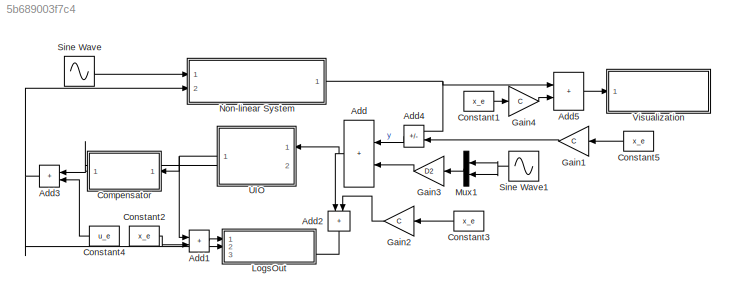
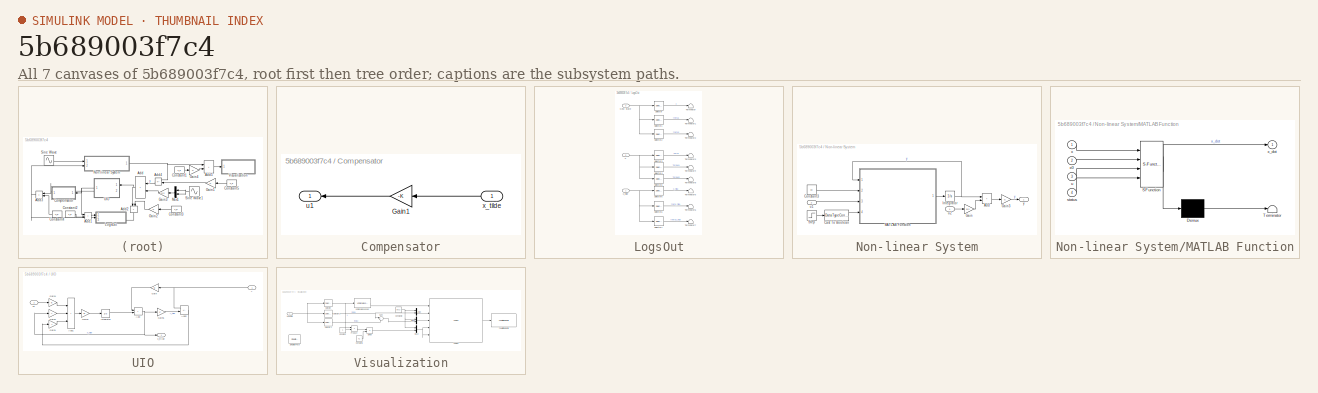
[diagram: thumbnail index - all 7 canvases of the model, root first then tree order]
MODEL slx_5b689003f7c4
KIND model
CONFIG AbsTol = auto
CONFIG EnableMultiTasking = off
CONFIG FixedStep = auto
CONFIG MaxStep = auto
CONFIG MinStep = auto
CONFIG RelTol = 1e-3
CONFIG SampleTimeConstraint = Unconstrained
CONFIG SolverName = VariableStepAuto
CONFIG StartTime = 0.0
CONFIG StopTime = 10.0
BLOCK [Sum] Add
  IconShape = rectangular
  Ports = [2, 1]
BLOCK [Sum] Add1
  IconShape = rectangular
  Ports = [2, 1]
BLOCK [Sum] Add2
  IconShape = rectangular
  NameLocation = right
  Ports = [2, 1]
BLOCK [Sum] Add3
  IconShape = rectangular
  Ports = [2, 1]
BLOCK [Sum] Add4
  IconShape = rectangular
  Inputs = +-
  Ports = [2, 1]
BLOCK [Sum] Add5
  IconShape = rectangular
  Ports = [2, 1]
BLOCK [SubSystem] Compensator
  Ports = [1, 1]
  RequestExecContextInheritance = off
BLOCK [Gain] Compensator/Gain1
  Gain = -K
  Multiplication = Matrix(K*u)
BLOCK [Outport] Compensator/u1
BLOCK [Inport] Compensator/x_tilde
BLOCK [Constant] Constant1
  Value = x_e
BLOCK [Constant] Constant2
  Value = x_e
BLOCK [Constant] Constant3
  Value = x_e
BLOCK [Constant] Constant4
  Value = u_e
BLOCK [Constant] Constant5
  Value = x_e
BLOCK [Gain] Gain1
  Gain = C
  Multiplication = Matrix(K*u)
BLOCK [Gain] Gain2
  Gain = C
  Multiplication = Matrix(K*u)
BLOCK [Gain] Gain3
  Gain = D2
  Multiplication = Matrix(K*u)
BLOCK [Gain] Gain4
  Gain = C
  Multiplication = Matrix(K*u)
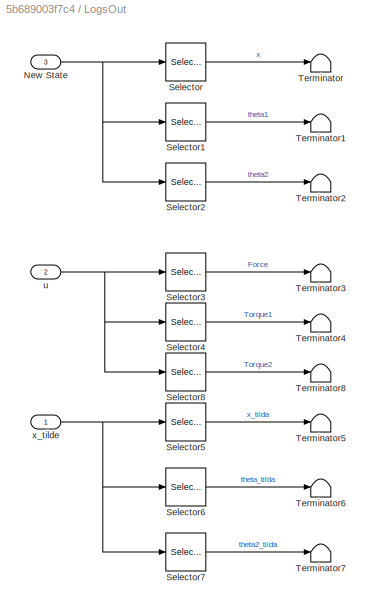
BLOCK [SubSystem] LogsOut
  PortSchema = {"entries":[{"content":{"sides":[{"content":{"connectorIds":["In1","In2"]},"type":"ConnectorPlacement.EquallySpacedRectSide","uuid":"a6e5c360-9678-424a-aca2-159feab9ca2f"},{"content":{"connectorIds":["In3"],"side":"RIGHT"},"type":"ConnectorPlacement.EquallySpacedRectSide","uuid":"87be8f2e-6499-443d-a388-19aeb21b3c40"},{"content":{"connectorIds":[],"side":"TOP"},"type":"ConnectorPlacement.EquallySp...<+245ch>
  Ports = [3]
  RequestExecContextInheritance = off
BLOCK [Inport] LogsOut/New State
  Port = 3
BLOCK [Selector] LogsOut/Selector
  IndexOptions = Index vector (dialog)
  Indices = 1
  InputPortWidth = 3
  OutputSizes = 1
  Ports = [1, 1]
BLOCK [Selector] LogsOut/Selector1
  IndexOptions = Index vector (dialog)
  Indices = 2
  InputPortWidth = 3
  OutputSizes = 1
  Ports = [1, 1]
BLOCK [Selector] LogsOut/Selector2
  IndexOptions = Index vector (dialog)
  Indices = 3
  InputPortWidth = 3
  OutputSizes = 1
  Ports = [1, 1]
BLOCK [Selector] LogsOut/Selector3
  IndexOptions = Index vector (dialog)
  Indices = 1
  InputPortWidth = 3
  OutputSizes = 1
  Ports = [1, 1]
BLOCK [Selector] LogsOut/Selector4
  IndexOptions = Index vector (dialog)
  Indices = 2
  InputPortWidth = 3
  OutputSizes = 1
  Ports = [1, 1]
BLOCK [Selector] LogsOut/Selector5
  IndexOptions = Index vector (dialog)
  Indices = 1
  InputPortWidth = 6
  OutputSizes = 1
  Ports = [1, 1]
BLOCK [Selector] LogsOut/Selector6
  IndexOptions = Index vector (dialog)
  Indices = 2
  InputPortWidth = 6
  OutputSizes = 1
  Ports = [1, 1]
BLOCK [Selector] LogsOut/Selector7
  IndexOptions = Index vector (dialog)
  Indices = 3
  InputPortWidth = 6
  OutputSizes = 1
  Ports = [1, 1]
BLOCK [Selector] LogsOut/Selector8
  IndexOptions = Index vector (dialog)
  Indices = 3
  InputPortWidth = 3
  OutputSizes = 1
  Ports = [1, 1]
BLOCK [Terminator] LogsOut/Terminator
BLOCK [Terminator] LogsOut/Terminator1
BLOCK [Terminator] LogsOut/Terminator2
BLOCK [Terminator] LogsOut/Terminator3
BLOCK [Terminator] LogsOut/Terminator4
BLOCK [Terminator] LogsOut/Terminator5
BLOCK [Terminator] LogsOut/Terminator6
BLOCK [Terminator] LogsOut/Terminator7
BLOCK [Terminator] LogsOut/Terminator8
BLOCK [Inport] LogsOut/u
  Port = 2
BLOCK [Inport] LogsOut/x_tilde
BLOCK [Mux] Mux1
  DisplayOption = bar
  Inputs = 2
  Ports = [2, 1]
BLOCK [SubSystem] Non-linear System
  Ports = [2, 1]
  RequestExecContextInheritance = off
BLOCK [Sum] Non-linear System/Add
  IconShape = rectangular
  Ports = [2, 1]
BLOCK [DataTypeConversion] Non-linear System/Cast To Boolean
  OutDataTypeStr = boolean
  RndMeth = Floor
  SaturateOnIntegerOverflow = off
BLOCK [Constant] Non-linear System/Constant3
  OutDataTypeStr = Bus: State_bus
  Value = x0
  VectorParams1D = off
BLOCK [Gain] Non-linear System/Gain
  Gain = B2
  Multiplication = Matrix(K*u)
BLOCK [Gain] Non-linear System/Gain3
  Gain = C
  Multiplication = Matrix(K*u)
BLOCK [Integrator] Non-linear System/Integrator
  InitialCondition = [x0.x;x0.theta1;x0.theta2;x0.x_dot;x0.theta1_dot;x0.theta2_dot]
  Ports = [1, 1]
BLOCK [SubSystem] Non-linear System/MATLAB Function
  ErrorFcn = Stateflow.Translate.translate
  PermitHierarchicalResolution = ExplicitOnly
  Ports = [4, 1]
  RequestExecContextInheritance = off
  SFBlockType = MATLAB Function
  TreatAsAtomicUnit = on
BLOCK [Demux] Non-linear System/MATLAB Function/ Demux 
  Outputs = 1
  Ports = [1, 1]
BLOCK [S-Function] Non-linear System/MATLAB Function/ SFunction 
  EnableBusSupport = on
  FunctionName = sf_sfun
  PortCounts = [4 2]
  Ports = [4, 2]
  SFcnIsStateOwnerBlock = off
  SFunctionDeploymentMode = off
  Tag = Stateflow S-Function 2
BLOCK [Terminator] Non-linear System/MATLAB Function/ Terminator 
BLOCK [Inport] Non-linear System/MATLAB Function/status
  Port = 4
BLOCK [Inport] Non-linear System/MATLAB Function/u
  Port = 3
BLOCK [Inport] Non-linear System/MATLAB Function/x
BLOCK [Inport] Non-linear System/MATLAB Function/x0
  Port = 2
BLOCK [Outport] Non-linear System/MATLAB Function/x_dot
BLOCK [Step] Non-linear System/Step
  SampleTime = 0
  Time = .001
BLOCK [Inport] Non-linear System/u1
  Port = 2
BLOCK [Inport] Non-linear System/u2
BLOCK [Outport] Non-linear System/y
BLOCK [Sin] Sine Wave
  Amplitude = .001
  Ports = [0, 1]
  SampleTime = 0
BLOCK [Sin] Sine Wave1
  Amplitude = .001
  Ports = [0, 1]
  SampleTime = 0
BLOCK [SubSystem] UIO
  PortSchema = {"entries":[{"content":{"sides":[{"content":{"connectorIds":["In1"]},"type":"ConnectorPlacement.EquallySpacedRectSide","uuid":"e0fdc8c6-333c-4d3c-a4a6-b3300e16a61f"},{"content":{"connectorIds":["In2","Out1"],"side":"RIGHT"},"type":"ConnectorPlacement.EquallySpacedRectSide","uuid":"dbf4194e-4b72-4f2d-9e59-4d14081d6aaf"},{"content":{"connectorIds":[],"side":"TOP"},"type":"ConnectorPlacement.EquallyS...<+246ch>
  Ports = [2, 1]
  RequestExecContextInheritance = off
BLOCK [Sum] UIO/Add
  IconShape = rectangular
  Ports = [2, 1]
BLOCK [Sum] UIO/Add1
  IconShape = rectangular
  Inputs = +++
  Ports = [3, 1]
BLOCK [Sum] UIO/Add2
  IconShape = rectangular
  Inputs = +-
  Ports = [2, 1]
BLOCK [Gain] UIO/Gain
  Gain = M
  Multiplication = Matrix(K*u)
BLOCK [Gain] UIO/Gain1
  Gain = L
  Multiplication = Matrix(K*u)
BLOCK [Gain] UIO/Gain2
  Gain = A
  Multiplication = Matrix(K*u)
BLOCK [Gain] UIO/Gain3
  Gain = pi
  Multiplication = Matrix(K*u)
BLOCK [Gain] UIO/Gain4
  Gain = B
  Multiplication = Matrix(K*u)
BLOCK [Gain] UIO/Gain5
  Gain = C
  Multiplication = Matrix(K*u)
BLOCK [Integrator] UIO/Integrator
  InitialCondition = q0
  Ports = [1, 1]
BLOCK [Inport] UIO/u1
  Port = 2
BLOCK [Outport] UIO/x_tilde
BLOCK [Inport] UIO/y
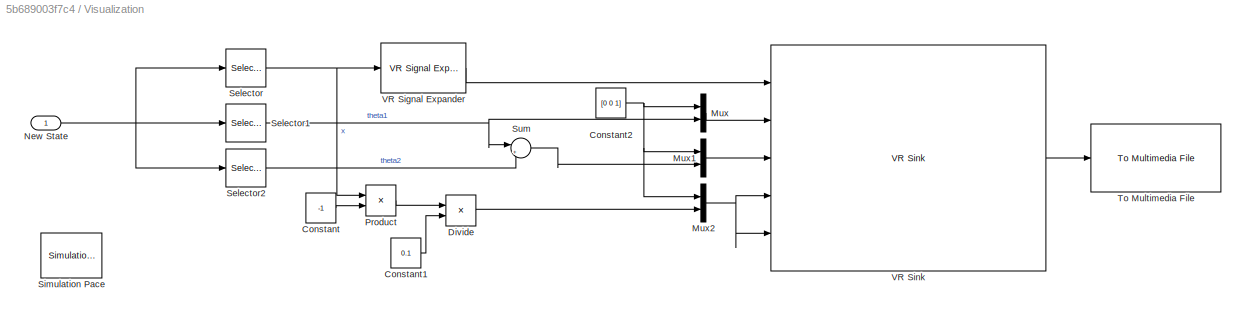
BLOCK [SubSystem] Visualization
  Ports = [1]
  RequestExecContextInheritance = off
BLOCK [Constant] Visualization/Constant
  Value = -1
BLOCK [Constant] Visualization/Constant1
  Value = 0.1
BLOCK [Constant] Visualization/Constant2
  Value = [0 0 1]
BLOCK [Product] Visualization/Divide
  Inputs = */
  Ports = [2, 1]
BLOCK [Mux] Visualization/Mux
  DisplayOption = bar
  Inputs = 2
  Ports = [2, 1]
BLOCK [Mux] Visualization/Mux1
  DisplayOption = bar
  Inputs = 2
  Ports = [2, 1]
BLOCK [Mux] Visualization/Mux2
  DisplayOption = bar
  Inputs = 2
  Ports = [2, 1]
BLOCK [Inport] Visualization/New State
BLOCK [Product] Visualization/Product
  Ports = [2, 1]
BLOCK [Selector] Visualization/Selector
  IndexOptions = Index vector (dialog)
  Indices = 1
  InputPortWidth = 3
  OutputSizes = 1
  Ports = [1, 1]
BLOCK [Selector] Visualization/Selector1
  IndexOptions = Index vector (dialog)
  Indices = 2
  InputPortWidth = 3
  OutputSizes = 1
  Ports = [1, 1]
BLOCK [Selector] Visualization/Selector2
  IndexOptions = Index vector (dialog)
  Indices = 3
  InputPortWidth = 3
  OutputSizes = 1
  Ports = [1, 1]
BLOCK [Reference] Visualization/Simulation Pace  REF=aerolibanimutils/Simulation Pace
  AttributesFormatString = %<SleepMode>\n%<SimulationPace> sec/sec
  Ports = []
  SourceBlock = aerolibanimutils/Simulation Pace
  SourceProductBaseCode = AE
  SourceType = Simulation Pace
BLOCK [Sum] Visualization/Sum
  Inputs = |+-
  Ports = [2, 1]
BLOCK [Reference] Visualization/To Multimedia File  REF=dspvision/To Multimedia File
  Ports = [1]
  SourceBlock = dspvision/To Multimedia File
  SourceProductBaseCode = DS,HW,VP
  SourceType = To Multimedia File
BLOCK [Reference] Visualization/VR Signal Expander  REF=vrlib/VR Signal Expander
  Ports = [1, 1]
  SourceBlock = vrlib/VR Signal Expander
  SourceProductBaseCode = SL
  SourceType = VR Signal Expander
BLOCK [Reference] Visualization/VR Sink  REF=vrlib/VR Sink
  InstantiateOnLoad = on
  Ports = [5, 1]
  SourceBlock = vrlib/VR Sink
  SourceProductBaseCode = SL
  SourceType = Virtual Reality Sink
LINE Add1:1 -> LogsOut:1
LINE Add2:1 -> LogsOut:3
NET Add3:1 -> LogsOut:2, Non-linear System:2
LINE Add4:1 -> Add:1
LINE Add5:1 -> Visualization:1
NET Add:1 -> Add2:1, UIO:1
LINE Compensator/Gain1:1 -> Compensator/u1:1
LINE Compensator/x_tilde:1 -> Compensator/Gain1:1
NET Compensator:1 -> Add3:1, UIO:2
LINE Constant1:1 -> Gain4:1
LINE Constant2:1 -> Add1:2
LINE Constant3:1 -> Gain2:1
LINE Constant4:1 -> Add3:2
LINE Constant5:1 -> Gain1:1
LINE Gain1:1 -> Add4:2
LINE Gain2:1 -> Add2:2
LINE Gain3:1 -> Add:2
LINE Gain4:1 -> Add5:2
NET LogsOut/New State:1 -> LogsOut/Selector1:1, LogsOut/Selector2:1, LogsOut/Selector:1
LINE LogsOut/Selector1:1 -> LogsOut/Terminator1:1
LINE LogsOut/Selector2:1 -> LogsOut/Terminator2:1
LINE LogsOut/Selector3:1 -> LogsOut/Terminator3:1
LINE LogsOut/Selector4:1 -> LogsOut/Terminator4:1
LINE LogsOut/Selector5:1 -> LogsOut/Terminator5:1
LINE LogsOut/Selector6:1 -> LogsOut/Terminator6:1
LINE LogsOut/Selector7:1 -> LogsOut/Terminator7:1
LINE LogsOut/Selector8:1 -> LogsOut/Terminator8:1
LINE LogsOut/Selector:1 -> LogsOut/Terminator:1
NET LogsOut/u:1 -> LogsOut/Selector3:1, LogsOut/Selector4:1, LogsOut/Selector8:1
NET LogsOut/x_tilde:1 -> LogsOut/Selector5:1, LogsOut/Selector6:1, LogsOut/Selector7:1
LINE Mux1:1 -> Gain3:1
LINE Non-linear System/Add:1 -> Non-linear System/Gain3:1
LINE Non-linear System/Cast To Boolean:1 -> Non-linear System/MATLAB Function:4
LINE Non-linear System/Constant3:1 -> Non-linear System/MATLAB Function:2
LINE Non-linear System/Gain3:1 -> Non-linear System/y:1
LINE Non-linear System/Gain:1 -> Non-linear System/Add:2
NET Non-linear System/Integrator:1 -> Non-linear System/Add:1, Non-linear System/MATLAB Function:1
LINE Non-linear System/MATLAB Function:1 -> Non-linear System/Integrator:1
LINE Non-linear System/Step:1 -> Non-linear System/Cast To Boolean:1
LINE Non-linear System/u1:1 -> Non-linear System/MATLAB Function:3
LINE Non-linear System/u2:1 -> Non-linear System/Gain:1
NET Non-linear System:1 -> Add4:1, Add5:1
NET Sine Wave1:1 -> Mux1:1, Mux1:2
LINE Sine Wave:1 -> Non-linear System:1
LINE UIO/Add1:1 -> UIO/Gain3:1
LINE UIO/Add2:1 -> UIO/Gain1:1
NET UIO/Add:1 -> UIO/Gain2:1, UIO/Gain5:1, UIO/x_tilde:1
LINE UIO/Gain1:1 -> UIO/Add1:3
LINE UIO/Gain2:1 -> UIO/Add1:2
LINE UIO/Gain3:1 -> UIO/Integrator:1
LINE UIO/Gain4:1 -> UIO/Add1:1
LINE UIO/Gain5:1 -> UIO/Add2:2
LINE UIO/Gain:1 -> UIO/Add:1
LINE UIO/Integrator:1 -> UIO/Add:2
LINE UIO/u1:1 -> UIO/Gain4:1
NET UIO/y:1 -> UIO/Add2:1, UIO/Gain:1
NET UIO:1 -> Add1:1, Compensator:1
LINE Visualization/Constant1:1 -> Visualization/Divide:2
NET Visualization/Constant2:1 -> Visualization/Mux1:1, Visualization/Mux2:1, Visualization/Mux:1
LINE Visualization/Constant:1 -> Visualization/Product:2
LINE Visualization/Divide:1 -> Visualization/Mux2:2
LINE Visualization/Mux1:1 -> Visualization/VR Sink:3
NET Visualization/Mux2:1 -> Visualization/VR Sink:4, Visualization/VR Sink:5
LINE Visualization/Mux:1 -> Visualization/VR Sink:2
NET Visualization/New State:1 -> Visualization/Selector1:1, Visualization/Selector2:1, Visualization/Selector:1
LINE Visualization/Product:1 -> Visualization/Divide:1
NET Visualization/Selector1:1 -> Visualization/Mux:2, Visualization/Sum:1
LINE Visualization/Selector2:1 -> Visualization/Sum:2
NET Visualization/Selector:1 -> Visualization/Product:1, Visualization/VR Signal Expander:1
LINE Visualization/Sum:1 -> Visualization/Mux1:2
LINE Visualization/VR Signal Expander:1 -> Visualization/VR Sink:1
LINE Visualization/VR Sink:1 -> Visualization/To Multimedia File:1
note: NET lines group one-source signal fan-out (src -> all destinations, sorted); 1:1 wires keep LINE
CHART Non-linear System/MATLAB Function states=1 transitions=1
  STATE_LABEL 'eML_blk_kernel()'
  STATE_LABEL 'SCRIPT:\nfunction x_dot  = Nonlinear_Dynamics(x,x0,u,status)\n    if status == false\n        x2 = x0.theta1;\n        x3 = x0.theta2;\n        x4 = x0.x_dot;\n        x5 = x0.theta1_dot;\n        x6 = x0.theta2_dot;\n        u1 = u(1);\n        u2 = u(2);\n        u3 = u(3);\n    else\n        x2 = x(2);\n        x3 = x(3);\n        x4 = x(4);\n        x5 = x(5);\n        x6 = x(6);\n        u1 = u(1);\n        u2...<+1197ch>'
CHART  states=0 transitions=0
